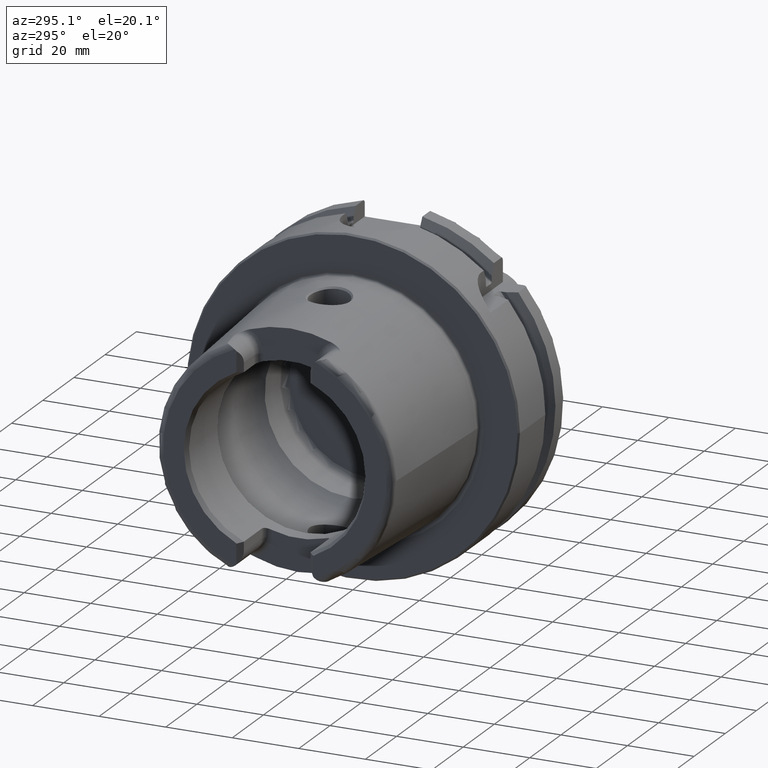
[diagram: clean part render]
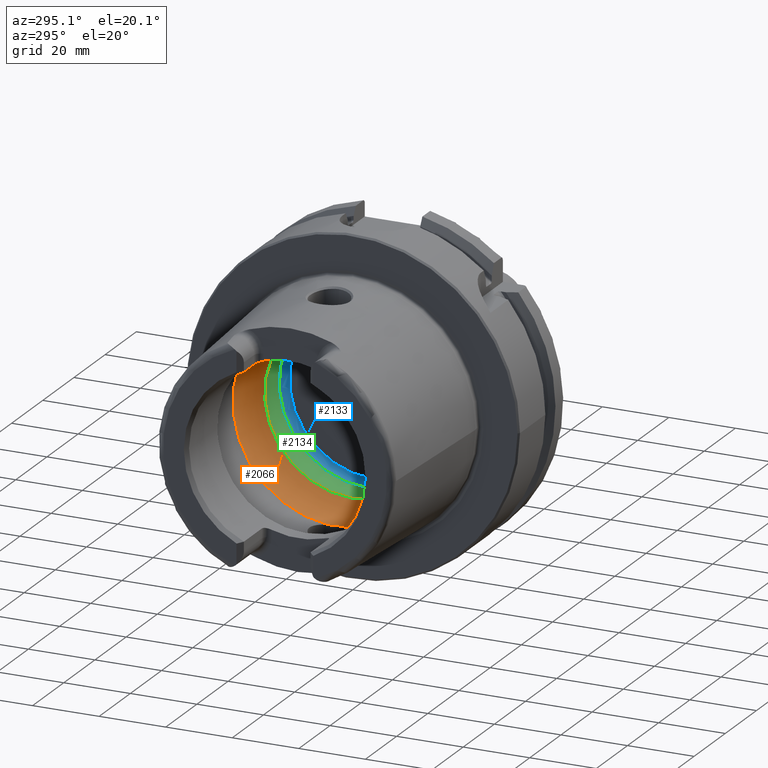
[diagram: same view with three faces highlighted in distinct colors, each labeled with its STEP entity id]
A machine part, auxiliary view with three faces highlighted in distinct colors.
Their STEP definitions:

[orange] entity #2066 — the highlighted toroidal blend (fillet) surface has major radius 19.5 mm and minor (blend) radius 12 mm.
#48=B_SPLINE_CURVE_WITH_KNOTS('',3,(#3676,#3677,#3678,#3679,#3680,#3681,
#3682,#3683,#3684,#3685),.UNSPECIFIED.,.F.,.F.,(4,2,2,2,4),(-0.606113644645353,
-0.532141714710631,-0.407956541554012,-0.344441109025195,-0.303157612487306),
 .UNSPECIFIED.);
#50=B_SPLINE_CURVE_WITH_KNOTS('',3,(#3718,#3719,#3720,#3721,#3722,#3723,
#3724,#3725,#3726,#3727),.UNSPECIFIED.,.F.,.F.,(4,2,2,2,4),(-0.303157612487306,
-0.297161587155601,-0.247817233363509,-0.174446982686599,0.),
 .UNSPECIFIED.);
#53=B_SPLINE_CURVE_WITH_KNOTS('',3,(#3868,#3869,#3870,#3871,#3872,#3873,
#3874,#3875,#3876,#3877),.UNSPECIFIED.,.F.,.F.,(4,2,2,2,4),(-0.606113644645388,
-0.532141714710621,-0.407956541553997,-0.344441109025146,-0.303157612487227),
 .UNSPECIFIED.);
#55=B_SPLINE_CURVE_WITH_KNOTS('',3,(#3910,#3911,#3912,#3913,#3914,#3915,
#3916,#3917,#3918,#3919),.UNSPECIFIED.,.F.,.F.,(4,2,2,2,4),(-0.303157612487227,
-0.297161587155532,-0.247817233363497,-0.174446982686607,0.),
 .UNSPECIFIED.);
#142=TOROIDAL_SURFACE('',#2274,19.5,12.);
#252=FACE_OUTER_BOUND('',#384,.T.);
#384=EDGE_LOOP('',(#1570,#1571,#1572,#1573,#1574,#1575,#1576,#1577,#1578,
#1579,#1580));
#738=CIRCLE('',#2269,31.5);
#741=CIRCLE('',#2272,31.5);
#742=CIRCLE('',#2273,31.5);
#743=CIRCLE('',#2275,26.5);
#744=CIRCLE('',#2276,26.5);
#745=CIRCLE('',#2277,12.);
#917=VERTEX_POINT('',#3673);
#918=VERTEX_POINT('',#3675);
#919=VERTEX_POINT('',#3686);
#922=VERTEX_POINT('',#3866);
#923=VERTEX_POINT('',#3867);
#924=VERTEX_POINT('',#3878);
#925=VERTEX_POINT('',#3922);
#928=VERTEX_POINT('',#3932);
#929=VERTEX_POINT('',#3933);
#1157=EDGE_CURVE('',#918,#917,#48,.T.);
#1159=EDGE_CURVE('',#917,#919,#50,.T.);
#1163=EDGE_CURVE('',#922,#923,#53,.T.);
#1165=EDGE_CURVE('',#923,#924,#55,.T.);
#1167=EDGE_CURVE('',#925,#922,#738,.T.);
#1171=EDGE_CURVE('',#919,#925,#741,.T.);
#1172=EDGE_CURVE('',#924,#918,#742,.T.);
#1173=EDGE_CURVE('',#928,#929,#743,.T.);
#1174=EDGE_CURVE('',#929,#928,#744,.T.);
#1175=EDGE_CURVE('',#929,#917,#745,.T.);
#1570=ORIENTED_EDGE('',*,*,#1173,.F.);
#1571=ORIENTED_EDGE('',*,*,#1174,.F.);
#1572=ORIENTED_EDGE('',*,*,#1175,.T.);
#1573=ORIENTED_EDGE('',*,*,#1159,.T.);
#1574=ORIENTED_EDGE('',*,*,#1171,.T.);
#1575=ORIENTED_EDGE('',*,*,#1167,.T.);
#1576=ORIENTED_EDGE('',*,*,#1163,.T.);
#1577=ORIENTED_EDGE('',*,*,#1165,.T.);
#1578=ORIENTED_EDGE('',*,*,#1172,.T.);
#1579=ORIENTED_EDGE('',*,*,#1157,.T.);
#1580=ORIENTED_EDGE('',*,*,#1175,.F.);
#2066=ADVANCED_FACE('',(#252),#142,.F.);
#2269=AXIS2_PLACEMENT_3D('',#3923,#2679,#2680);
#2272=AXIS2_PLACEMENT_3D('',#3929,#2686,#2687);
#2273=AXIS2_PLACEMENT_3D('',#3930,#2688,#2689);
#2274=AXIS2_PLACEMENT_3D('',#3931,#2690,#2691);
#2275=AXIS2_PLACEMENT_3D('',#3934,#2692,#2693);
#2276=AXIS2_PLACEMENT_3D('',#3935,#2694,#2695);
#2277=AXIS2_PLACEMENT_3D('',#3936,#2696,#2697);
#2679=DIRECTION('center_axis',(-1.,0.,0.));
#2680=DIRECTION('ref_axis',(0.,0.,1.));
#2686=DIRECTION('center_axis',(-1.,0.,0.));
#2687=DIRECTION('ref_axis',(0.,0.,1.));
#2688=DIRECTION('center_axis',(-1.,0.,0.));
#2689=DIRECTION('ref_axis',(0.,0.,1.));
#2690=DIRECTION('center_axis',(-1.,0.,0.));
#2691=DIRECTION('ref_axis',(0.,0.,1.));
#2692=DIRECTION('center_axis',(-1.,0.,0.));
#2693=DIRECTION('ref_axis',(0.,0.,1.));
#2694=DIRECTION('center_axis',(-1.,0.,0.));
#2695=DIRECTION('ref_axis',(0.,0.,1.));
#2696=DIRECTION('center_axis',(0.,1.,-1.22464679914735E-16));
#2697=DIRECTION('ref_axis',(0.,-1.22464679914735E-16,-1.));
#3673=CARTESIAN_POINT('',(-9.,8.53116613017712E-16,-31.4767398822284));
#3675=CARTESIAN_POINT('',(-9.74679434480896,2.89893607109041,-31.3663222207471));
#3676=CARTESIAN_POINT('Ctrl Pts',(-9.74679434480898,2.89893607109041,-31.3663222207471));
#3677=CARTESIAN_POINT('Ctrl Pts',(-9.62803941549252,2.68373847757038,-31.3862111979079));
#3678=CARTESIAN_POINT('Ctrl Pts',(-9.52250794022164,2.46123932380009,-31.4027818190648));
#3679=CARTESIAN_POINT('Ctrl Pts',(-9.27707880675082,1.84905941644996,-31.4398086116956));
#3680=CARTESIAN_POINT('Ctrl Pts',(-9.16318715371328,1.45014848778478,-31.4552463037839));
#3681=CARTESIAN_POINT('Ctrl Pts',(-9.05448554629564,0.83406948853474,-31.4697090180031));
#3682=CARTESIAN_POINT('Ctrl Pts',(-9.02875508102837,0.623753972628784,-31.4730355369691));
#3683=CARTESIAN_POINT('Ctrl Pts',(-9.00473516300901,0.275210595137741,-31.4761342948647));
#3684=CARTESIAN_POINT('Ctrl Pts',(-9.,0.13762179988616,-31.4767398822284));
#3685=CARTESIAN_POINT('Ctrl Pts',(-9.,9.71445146547012E-16,-31.4767398822284));
#3686=CARTESIAN_POINT('',(-9.74679434480896,-2.89893607109041,-31.3663222207471));
#3718=CARTESIAN_POINT('Ctrl Pts',(-9.,9.83483832277069E-16,-31.4767398822284));
#3719=CARTESIAN_POINT('Ctrl Pts',(-9.,-0.0199882245331354,-31.4767398822284));
#3720=CARTESIAN_POINT('Ctrl Pts',(-9.00009988237686,-0.0399771452902417,
-31.4767270717783));
#3721=CARTESIAN_POINT('Ctrl Pts',(-9.00194380057016,-0.224464346212316,
-31.4764905359115));
#3722=CARTESIAN_POINT('Ctrl Pts',(-9.01035297969853,-0.388827878343727,
-31.4754151841588));
#3723=CARTESIAN_POINT('Ctrl Pts',(-9.0480310904853,-0.796171644009328,-31.4705320701686));
#3724=CARTESIAN_POINT('Ctrl Pts',(-9.08543037238412,-1.03809779370842,-31.4656619259797));
#3725=CARTESIAN_POINT('Ctrl Pts',(-9.26119500081336,-1.84501079512327,-31.441850680052));
#3726=CARTESIAN_POINT('Ctrl Pts',(-9.4667592962906,-2.39148034786879,-31.4132222586341));
#3727=CARTESIAN_POINT('Ctrl Pts',(-9.74679434480898,-2.89893607109041,-31.3663222207471));
#3866=CARTESIAN_POINT('',(-9.74679434480896,-2.89893607109042,31.3663222207471));
#3867=CARTESIAN_POINT('',(-8.99999999999999,7.8372767397864E-16,31.4767398822284));
#3868=CARTESIAN_POINT('Ctrl Pts',(-9.74679434480898,-2.89893607109042,31.3663222207471));
#3869=CARTESIAN_POINT('Ctrl Pts',(-9.62803941549257,-2.6837384775705,31.3862111979079));
#3870=CARTESIAN_POINT('Ctrl Pts',(-9.52250794022172,-2.46123932380032,31.4027818190648));
#3871=CARTESIAN_POINT('Ctrl Pts',(-9.27707880675083,-1.84905941645004,31.4398086116956));
#3872=CARTESIAN_POINT('Ctrl Pts',(-9.16318715371328,-1.45014848778485,31.4552463037839));
#3873=CARTESIAN_POINT('Ctrl Pts',(-9.05448554629561,-0.834069488534672,
31.4697090180031));
#3874=CARTESIAN_POINT('Ctrl Pts',(-9.02875508102836,-0.623753972628598,
31.4730355369691));
#3875=CARTESIAN_POINT('Ctrl Pts',(-9.00473516300902,-0.275210595137865,
31.4761342948647));
#3876=CARTESIAN_POINT('Ctrl Pts',(-8.99999999999999,-0.137621799886392,
31.4767398822284));
#3877=CARTESIAN_POINT('Ctrl Pts',(-8.99999999999999,9.0205620750794E-16,
31.4767398822284));
#3878=CARTESIAN_POINT('',(-9.74679434480896,2.89893607109042,31.3663222207471));
#3910=CARTESIAN_POINT('Ctrl Pts',(-8.99999999999999,8.7920239009422E-16,
31.4767398822284));
#3911=CARTESIAN_POINT('Ctrl Pts',(-8.99999999999999,0.0199882245331231,
31.4767398822284));
#3912=CARTESIAN_POINT('Ctrl Pts',(-9.00009988237684,0.0399771452902225,
31.4767270717783));
#3913=CARTESIAN_POINT('Ctrl Pts',(-9.00194380057014,0.224464346212396,31.4764905359115));
#3914=CARTESIAN_POINT('Ctrl Pts',(-9.01035297969852,0.388827878343765,31.4754151841588));
#3915=CARTESIAN_POINT('Ctrl Pts',(-9.0480310904853,0.79617164400948,31.4705320701686));
#3916=CARTESIAN_POINT('Ctrl Pts',(-9.08543037238414,1.03809779370849,31.4656619259797));
#3917=CARTESIAN_POINT('Ctrl Pts',(-9.26119500081334,1.84501079512323,31.441850680052));
#3918=CARTESIAN_POINT('Ctrl Pts',(-9.46675929629059,2.39148034786878,31.4132222586341));
#3919=CARTESIAN_POINT('Ctrl Pts',(-9.74679434480898,2.89893607109043,31.3663222207471));
#3922=CARTESIAN_POINT('',(-9.74679434480896,-31.5,3.85763741731416E-15));
#3923=CARTESIAN_POINT('Origin',(-9.74679434480896,0.,0.));
#3929=CARTESIAN_POINT('Origin',(-9.74679434480896,0.,0.));
#3930=CARTESIAN_POINT('Origin',(-9.74679434480896,0.,0.));
#3931=CARTESIAN_POINT('Origin',(-9.74679434480896,0.,0.));
#3932=CARTESIAN_POINT('',(0.,-26.5,3.24531401774049E-15));
#3933=CARTESIAN_POINT('',(0.,-3.24531401774049E-15,-26.5));
#3934=CARTESIAN_POINT('Origin',(0.,0.,0.));
#3935=CARTESIAN_POINT('Origin',(0.,0.,0.));
#3936=CARTESIAN_POINT('Origin',(-9.74679434480896,-2.38806125833734E-15,
-19.5));

[blue] entity #2133 — the highlighted toroidal blend (fillet) surface has major radius 24.9 mm and minor (blend) radius 2 mm.
#160=TOROIDAL_SURFACE('',#2405,24.9,2.);
#319=FACE_OUTER_BOUND('',#455,.T.);
#455=EDGE_LOOP('',(#1932,#1933,#1934,#1935,#1936));
#806=CIRCLE('',#2404,24.9);
#807=CIRCLE('',#2406,2.);
#808=CIRCLE('',#2407,26.5);
#809=CIRCLE('',#2408,26.5);
#1026=VERTEX_POINT('',#4571);
#1027=VERTEX_POINT('',#4574);
#1028=VERTEX_POINT('',#4576);
#1335=EDGE_CURVE('',#1026,#1026,#806,.T.);
#1336=EDGE_CURVE('',#1026,#1027,#807,.T.);
#1337=EDGE_CURVE('',#1027,#1028,#808,.T.);
#1338=EDGE_CURVE('',#1028,#1027,#809,.T.);
#1932=ORIENTED_EDGE('',*,*,#1335,.F.);
#1933=ORIENTED_EDGE('',*,*,#1336,.T.);
#1934=ORIENTED_EDGE('',*,*,#1337,.T.);
#1935=ORIENTED_EDGE('',*,*,#1338,.T.);
#1936=ORIENTED_EDGE('',*,*,#1336,.F.);
#2133=ADVANCED_FACE('',(#319),#160,.F.);
#2404=AXIS2_PLACEMENT_3D('',#4572,#3008,#3009);
#2405=AXIS2_PLACEMENT_3D('',#4573,#3010,#3011);
#2406=AXIS2_PLACEMENT_3D('',#4575,#3012,#3013);
#2407=AXIS2_PLACEMENT_3D('',#4577,#3014,#3015);
#2408=AXIS2_PLACEMENT_3D('',#4578,#3016,#3017);
#3008=DIRECTION('center_axis',(-1.,0.,0.));
#3009=DIRECTION('ref_axis',(0.,0.,1.));
#3010=DIRECTION('center_axis',(-1.,0.,0.));
#3011=DIRECTION('ref_axis',(0.,0.,1.));
#3012=DIRECTION('center_axis',(0.,1.,-1.22464679914735E-16));
#3013=DIRECTION('ref_axis',(0.,-1.22464679914735E-16,-1.));
#3014=DIRECTION('center_axis',(-1.,0.,0.));
#3015=DIRECTION('ref_axis',(0.,0.,1.));
#3016=DIRECTION('center_axis',(-1.,0.,0.));
#3017=DIRECTION('ref_axis',(0.,0.,1.));
#4571=CARTESIAN_POINT('',(12.5,-3.04937052987691E-15,-24.9));
#4572=CARTESIAN_POINT('Origin',(12.5,0.,0.));
#4573=CARTESIAN_POINT('Origin',(10.5,0.,0.));
#4574=CARTESIAN_POINT('',(9.3,-3.24531401774049E-15,-26.5));
#4575=CARTESIAN_POINT('Origin',(10.5,-3.04937052987691E-15,-24.9));
#4576=CARTESIAN_POINT('',(9.3,-26.5,3.24531401774049E-15));
#4577=CARTESIAN_POINT('Origin',(9.3,0.,0.));
#4578=CARTESIAN_POINT('Origin',(9.3,0.,0.));

[green] entity #2134 — the highlighted cylindrical surface (bore or boss wall) has radius 26.5 mm, axis along (-1, 0, 0).
#210=CYLINDRICAL_SURFACE('',#2409,26.5);
#320=FACE_OUTER_BOUND('',#456,.T.);
#456=EDGE_LOOP('',(#1937,#1938,#1939,#1940,#1941,#1942));
#575=LINE('',#4580,#683);
#683=VECTOR('',#3020,26.5);
#743=CIRCLE('',#2275,26.5);
#744=CIRCLE('',#2276,26.5);
#808=CIRCLE('',#2407,26.5);
#809=CIRCLE('',#2408,26.5);
#928=VERTEX_POINT('',#3932);
#929=VERTEX_POINT('',#3933);
#1027=VERTEX_POINT('',#4574);
#1028=VERTEX_POINT('',#4576);
#1173=EDGE_CURVE('',#928,#929,#743,.T.);
#1174=EDGE_CURVE('',#929,#928,#744,.T.);
#1337=EDGE_CURVE('',#1027,#1028,#808,.T.);
#1338=EDGE_CURVE('',#1028,#1027,#809,.T.);
#1339=EDGE_CURVE('',#1028,#928,#575,.T.);
#1937=ORIENTED_EDGE('',*,*,#1338,.F.);
#1938=ORIENTED_EDGE('',*,*,#1339,.T.);
#1939=ORIENTED_EDGE('',*,*,#1173,.T.);
#1940=ORIENTED_EDGE('',*,*,#1174,.T.);
#1941=ORIENTED_EDGE('',*,*,#1339,.F.);
#1942=ORIENTED_EDGE('',*,*,#1337,.F.);
#2134=ADVANCED_FACE('',(#320),#210,.F.);
#2275=AXIS2_PLACEMENT_3D('',#3934,#2692,#2693);
#2276=AXIS2_PLACEMENT_3D('',#3935,#2694,#2695);
#2407=AXIS2_PLACEMENT_3D('',#4577,#3014,#3015);
#2408=AXIS2_PLACEMENT_3D('',#4578,#3016,#3017);
#2409=AXIS2_PLACEMENT_3D('',#4579,#3018,#3019);
#2692=DIRECTION('center_axis',(-1.,0.,0.));
#2693=DIRECTION('ref_axis',(0.,0.,1.));
#2694=DIRECTION('center_axis',(-1.,0.,0.));
#2695=DIRECTION('ref_axis',(0.,0.,1.));
#3014=DIRECTION('center_axis',(-1.,0.,0.));
#3015=DIRECTION('ref_axis',(0.,0.,1.));
#3016=DIRECTION('center_axis',(-1.,0.,0.));
#3017=DIRECTION('ref_axis',(0.,0.,1.));
#3018=DIRECTION('center_axis',(-1.,0.,0.));
#3019=DIRECTION('ref_axis',(0.,1.,0.));
#3020=DIRECTION('',(-1.,0.,0.));
#3932=CARTESIAN_POINT('',(0.,-26.5,3.24531401774049E-15));
#3933=CARTESIAN_POINT('',(0.,-3.24531401774049E-15,-26.5));
#3934=CARTESIAN_POINT('Origin',(0.,0.,0.));
#3935=CARTESIAN_POINT('Origin',(0.,0.,0.));
#4574=CARTESIAN_POINT('',(9.3,-3.24531401774049E-15,-26.5));
#4576=CARTESIAN_POINT('',(9.3,-26.5,3.24531401774049E-15));
#4577=CARTESIAN_POINT('Origin',(9.3,0.,0.));
#4578=CARTESIAN_POINT('Origin',(9.3,0.,0.));
#4579=CARTESIAN_POINT('Origin',(4.65,0.,0.));
#4580=CARTESIAN_POINT('',(4.65,-26.5,3.24531401774049E-15));